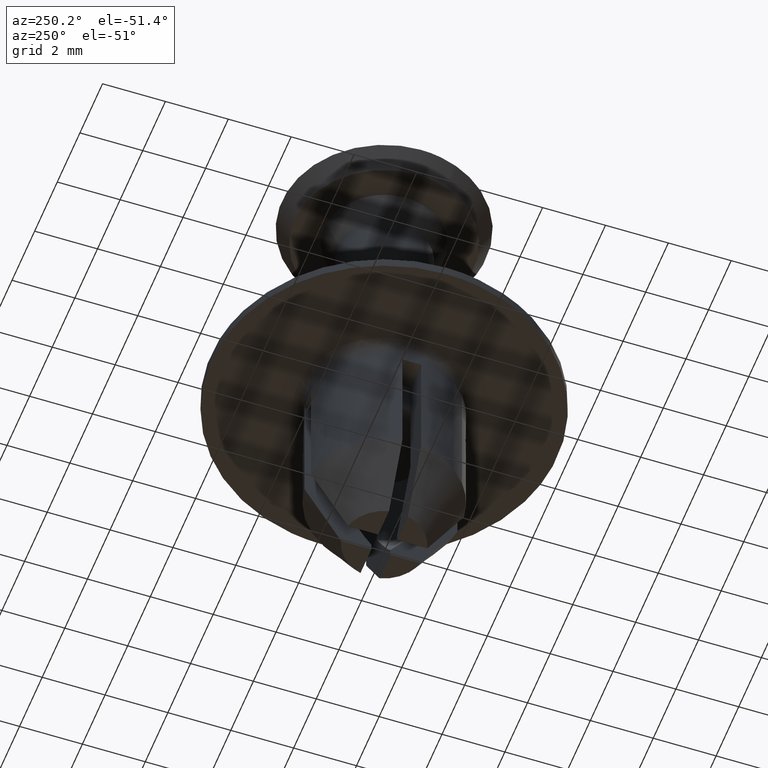
[diagram: clean part render]
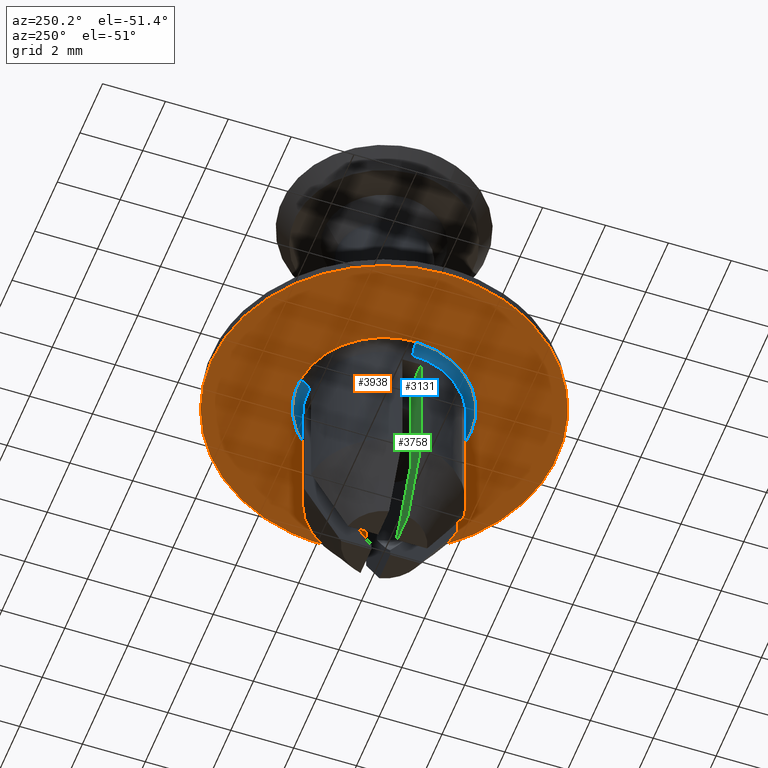
[diagram: same view with three faces highlighted in distinct colors, each labeled with its STEP entity id]
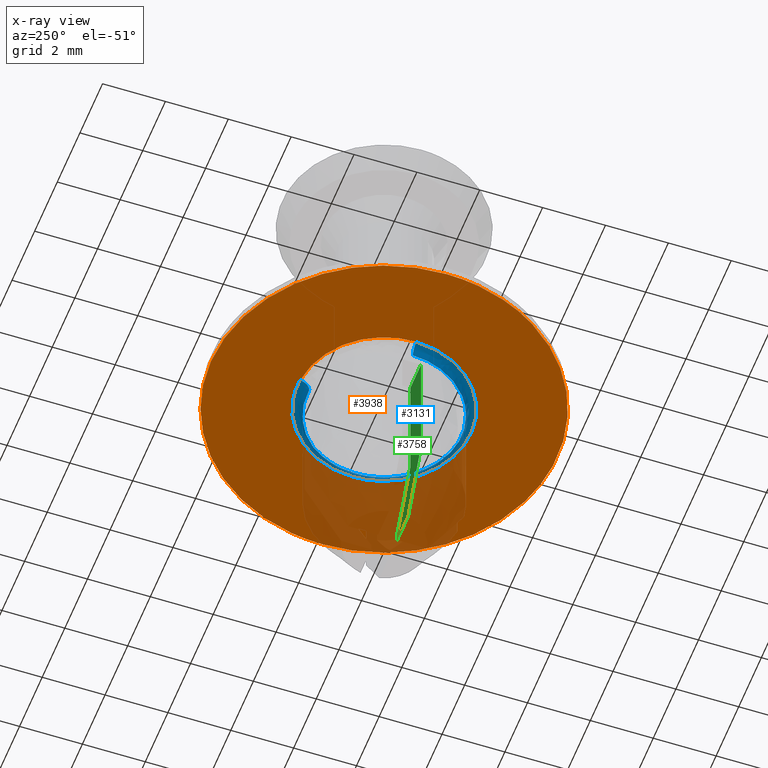
[diagram: x-ray of the same camera — body ghosted, the three highlighted faces saturated]
A machine part, auxiliary view with three faces highlighted in distinct colors.
The next image is the same camera in x-ray (body ghosted, the three faces saturated) — at least one of them is partly hidden behind the body in this view.
Their STEP definitions:

[orange] entity #3938 — the highlighted face is a freeform B-spline surface patch.
#2853=CARTESIAN_POINT('',(-5.148790866320307,-1.933895709412805,-8.913397459626493));
#2854=VERTEX_POINT('',#2853);
#2855=CARTESIAN_POINT('',(-5.500000000000000,0.0,-8.913397459621740));
#2856=VERTEX_POINT('',#2855);
#2857=CARTESIAN_POINT('',(-5.148790866320307,-1.933895709412805,-8.913397459626493));
#2858=CARTESIAN_POINT('',(-5.500000000000001,-0.998838885587663,-8.913397459621740));
#2859=CARTESIAN_POINT('',(-5.500000000000000,0.0,-8.913397459621740));
#2867=(BOUNDED_CURVE()B_SPLINE_CURVE(2,(#2857,#2858,#2859),.UNSPECIFIED.,.F.,.U.)B_SPLINE_CURVE_WITH_KNOTS((3,3),(0.940284267523785,1.0),.UNSPECIFIED.)CURVE()GEOMETRIC_REPRESENTATION_ITEM()RATIONAL_B_SPLINE_CURVE((0.893499672881765,0.930038667604954,1.0))REPRESENTATION_ITEM(''));
#2868=EDGE_CURVE('',#2854,#2856,#2867,.T.);
#2939=CARTESIAN_POINT('',(0.335765256333837,-5.489741495975574,-8.913397459621677));
#2940=VERTEX_POINT('',#2939);
#2946=CARTESIAN_POINT('',(5.500000000000000,0.0,-8.913397459621740));
#2947=VERTEX_POINT('',#2946);
#2948=CARTESIAN_POINT('',(5.500000000000000,0.0,-8.913397459621740));
#2949=CARTESIAN_POINT('',(5.500000000000001,-5.173884983652573,-8.913397459621740));
#2950=CARTESIAN_POINT('',(0.335765256333837,-5.489741495975575,-8.913397459621677));
#2958=(BOUNDED_CURVE()B_SPLINE_CURVE(2,(#2948,#2949,#2950),.UNSPECIFIED.,.F.,.U.)B_SPLINE_CURVE_WITH_KNOTS((3,3),(0.500000000000000,0.739333016023406),.UNSPECIFIED.)CURVE()GEOMETRIC_REPRESENTATION_ITEM()RATIONAL_B_SPLINE_CURVE((1.0,0.719603930274292,0.976072156937087))REPRESENTATION_ITEM(''));
#2959=EDGE_CURVE('',#2947,#2940,#2958,.T.);
#2961=CARTESIAN_POINT('',(-5.500000000000000,0.0,-8.913397459621740));
#2962=CARTESIAN_POINT('',(-5.500000000000001,5.500000000000001,-8.913397459621740));
#2963=CARTESIAN_POINT('',(0.0,5.500000000000000,-8.913397459621740));
#2964=CARTESIAN_POINT('',(5.500000000000001,5.500000000000001,-8.913397459621740));
#2965=CARTESIAN_POINT('',(5.500000000000000,0.0,-8.913397459621740));
#2973=(BOUNDED_CURVE()B_SPLINE_CURVE(2,(#2961,#2962,#2963,#2964,#2965),.UNSPECIFIED.,.F.,.U.)B_SPLINE_CURVE_WITH_KNOTS((3,2,3),(0.0,0.250000000000000,0.500000000000000),.UNSPECIFIED.)CURVE()GEOMETRIC_REPRESENTATION_ITEM()RATIONAL_B_SPLINE_CURVE((1.0,0.707106781186548,1.0,0.707106781186548,1.0))REPRESENTATION_ITEM(''));
#2974=EDGE_CURVE('',#2856,#2947,#2973,.T.);
#2993=CARTESIAN_POINT('',(0.335765256333837,-5.489741495975575,-8.913397459621677));
#2994=CARTESIAN_POINT('',(0.168039340189431,-5.500000000000000,-8.913397459621741));
#2995=CARTESIAN_POINT('',(0.0,-5.500000000000000,-8.913397459621740));
#2996=CARTESIAN_POINT('',(-3.809355265625922,-5.500000000000000,-8.913397459621740));
#2997=CARTESIAN_POINT('',(-5.148790866320307,-1.933895709412805,-8.913397459626493));
#3005=(BOUNDED_CURVE()B_SPLINE_CURVE(2,(#2993,#2994,#2995,#2996,#2997),.UNSPECIFIED.,.F.,.U.)B_SPLINE_CURVE_WITH_KNOTS((3,2,3),(0.739333016023406,0.750000000000000,0.940284267523785),.UNSPECIFIED.)CURVE()GEOMETRIC_REPRESENTATION_ITEM()RATIONAL_B_SPLINE_CURVE((0.976072156937087,0.987502850912255,1.0,0.777068113581594,0.893499672881765))REPRESENTATION_ITEM(''));
#3006=EDGE_CURVE('',#2940,#2854,#3005,.T.);
#3064=CARTESIAN_POINT('',(-0.191766441838224,2.743305602943734,-8.913397459621736));
#3065=VERTEX_POINT('',#3064);
#3079=CARTESIAN_POINT('',(2.750000000000000,0.0,-8.913397459621740));
#3080=VERTEX_POINT('',#3079);
#3081=CARTESIAN_POINT('',(2.750000000000000,0.0,-8.913397459621740));
#3082=CARTESIAN_POINT('',(2.750000000000000,2.750000000000000,-8.913397459621740));
#3083=CARTESIAN_POINT('',(0.0,2.750000000000000,-8.913397459621740));
#3084=CARTESIAN_POINT('',(-0.096000068669401,2.750000000000000,-8.913397459621741));
#3085=CARTESIAN_POINT('',(-0.191766441838224,2.743305602943734,-8.913397459621736));
#3093=(BOUNDED_CURVE()B_SPLINE_CURVE(2,(#3081,#3082,#3083,#3084,#3085),.UNSPECIFIED.,.F.,.U.)B_SPLINE_CURVE_WITH_KNOTS((3,2,3),(0.500000000000000,0.750000000000000,0.762166313466607),.UNSPECIFIED.)CURVE()GEOMETRIC_REPRESENTATION_ITEM()RATIONAL_B_SPLINE_CURVE((1.0,0.707106781186548,1.0,0.985746277150688,0.972879876383382))REPRESENTATION_ITEM(''));
#3094=EDGE_CURVE('',#3080,#3065,#3093,.T.);
#3096=CARTESIAN_POINT('',(-2.749782871016745,-0.034556609732422,-8.913397459621734));
#3097=VERTEX_POINT('',#3096);
#3098=CARTESIAN_POINT('',(-2.749782871016745,-0.034556609732422,-8.913397459621734));
#3099=CARTESIAN_POINT('',(-2.715657807126544,-2.749999999999999,-8.913397459621738));
#3100=CARTESIAN_POINT('',(0.0,-2.750000000000000,-8.913397459621740));
#3101=CARTESIAN_POINT('',(2.750000000000000,-2.750000000000000,-8.913397459621740));
#3102=CARTESIAN_POINT('',(2.750000000000000,0.0,-8.913397459621740));
#3110=(BOUNDED_CURVE()B_SPLINE_CURVE(2,(#3098,#3099,#3100,#3101,#3102),.UNSPECIFIED.,.F.,.U.)B_SPLINE_CURVE_WITH_KNOTS((3,2,3),(0.002215704085950,0.250000000000000,0.500000000000000),.UNSPECIFIED.)CURVE()GEOMETRIC_REPRESENTATION_ITEM()RATIONAL_B_SPLINE_CURVE((0.994854295626340,0.709702639993236,1.0,0.707106781186548,1.0))REPRESENTATION_ITEM(''));
#3111=EDGE_CURVE('',#3097,#3080,#3110,.T.);
#3152=CARTESIAN_POINT('',(-2.750000000000000,0.0,-8.913397459621740));
#3153=VERTEX_POINT('',#3152);
#3154=CARTESIAN_POINT('',(-2.750000000000000,0.0,-8.913397459621740));
#3155=CARTESIAN_POINT('',(-2.750000000000000,-0.017278987037730,-8.913397459621738));
#3156=CARTESIAN_POINT('',(-2.749782871016745,-0.034556609732422,-8.913397459621734));
#3164=(BOUNDED_CURVE()B_SPLINE_CURVE(2,(#3154,#3155,#3156),.UNSPECIFIED.,.F.,.U.)B_SPLINE_CURVE_WITH_KNOTS((3,3),(0.0,0.002215704085950),.UNSPECIFIED.)CURVE()GEOMETRIC_REPRESENTATION_ITEM()RATIONAL_B_SPLINE_CURVE((1.0,0.997404141193312,0.994854295626340))REPRESENTATION_ITEM(''));
#3165=EDGE_CURVE('',#3153,#3097,#3164,.T.);
#3167=CARTESIAN_POINT('',(-0.191766441838224,2.743305602943734,-8.913397459621736));
#3168=CARTESIAN_POINT('',(-2.750000000000000,2.564476329957151,-8.913397459621740));
#3169=CARTESIAN_POINT('',(-2.750000000000000,0.0,-8.913397459621740));
#3177=(BOUNDED_CURVE()B_SPLINE_CURVE(2,(#3167,#3168,#3169),.UNSPECIFIED.,.F.,.U.)B_SPLINE_CURVE_WITH_KNOTS((3,3),(0.762166313466608,1.0),.UNSPECIFIED.)CURVE()GEOMETRIC_REPRESENTATION_ITEM()RATIONAL_B_SPLINE_CURVE((0.972879876383380,0.721360504035861,1.0))REPRESENTATION_ITEM(''));
#3178=EDGE_CURVE('',#3065,#3153,#3177,.T.);
#3921=CARTESIAN_POINT('',(6.049449978679865,-6.048444225016681,-8.913397459621740));
#3922=CARTESIAN_POINT('',(-6.049450273722857,-6.048444225016681,-8.913397459621740));
#3923=CARTESIAN_POINT('',(6.049449978679865,6.049402426305858,-8.913397459621740));
#3924=CARTESIAN_POINT('',(-6.049450273722857,6.049402426305858,-8.913397459621740));
#3925=B_SPLINE_SURFACE_WITH_KNOTS('',1,1,((#3921,#3923),(#3922,#3924)),.UNSPECIFIED.,.F.,.F.,.U.,(2,2),(2,2),(0.0,12.098900252402720),(0.0,12.097846651322540),.UNSPECIFIED.);
#3926=ORIENTED_EDGE('',*,*,#2974,.T.);
#3927=ORIENTED_EDGE('',*,*,#2959,.T.);
#3928=ORIENTED_EDGE('',*,*,#3006,.T.);
#3929=ORIENTED_EDGE('',*,*,#2868,.T.);
#3930=EDGE_LOOP('',(#3926,#3927,#3928,#3929));
#3931=FACE_OUTER_BOUND('',#3930,.T.);
#3932=ORIENTED_EDGE('',*,*,#3165,.T.);
#3933=ORIENTED_EDGE('',*,*,#3111,.T.);
#3934=ORIENTED_EDGE('',*,*,#3094,.T.);
#3935=ORIENTED_EDGE('',*,*,#3178,.T.);
#3936=EDGE_LOOP('',(#3932,#3933,#3934,#3935));
#3937=FACE_BOUND('',#3936,.T.);
#3938=ADVANCED_FACE('',(#3931,#3937),#3925,.T.);

[blue] entity #3131 — the highlighted face is a freeform B-spline surface patch.
#2495=CARTESIAN_POINT('',(-1.502842864330901,-1.934932382571793,-9.213397459613795));
#2496=VERTEX_POINT('',#2495);
#2497=CARTESIAN_POINT('',(-2.449806558299195,-0.030786797725481,-9.213397459584456));
#2498=VERTEX_POINT('',#2497);
#2499=CARTESIAN_POINT('',(-1.502842864330901,-1.934932382571793,-9.213397459613795));
#2500=CARTESIAN_POINT('',(-2.434975354644088,-1.210954358262321,-9.213397459602641));
#2501=CARTESIAN_POINT('',(-2.449806558299195,-0.030786797725481,-9.213397459584456));
#2509=(BOUNDED_CURVE()B_SPLINE_CURVE(2,(#2499,#2500,#2501),.UNSPECIFIED.,.F.,.U.)B_SPLINE_CURVE_WITH_KNOTS((3,3),(0.856109346381657,0.997784295920110),.UNSPECIFIED.)CURVE()GEOMETRIC_REPRESENTATION_ITEM()RATIONAL_B_SPLINE_CURVE((0.856898060516079,0.831813912973609,0.994854295640287))REPRESENTATION_ITEM(''));
#2510=EDGE_CURVE('',#2496,#2498,#2509,.T.);
#2527=CARTESIAN_POINT('',(-0.170846466362908,2.444035900908832,-9.213397459585618));
#2528=VERTEX_POINT('',#2527);
#2542=CARTESIAN_POINT('',(2.449999999999975,0.0,-9.213397459621731));
#2543=VERTEX_POINT('',#2542);
#2544=CARTESIAN_POINT('',(-0.170846466362908,2.444035900908832,-9.213397459585618));
#2545=CARTESIAN_POINT('',(-0.085527333896129,2.449999999999975,-9.213397459621731));
#2546=CARTESIAN_POINT('',(0.0,2.449999999999975,-9.213397459621731));
#2547=CARTESIAN_POINT('',(2.449999999999976,2.449999999999976,-9.213397459621731));
#2548=CARTESIAN_POINT('',(2.449999999999975,0.0,-9.213397459621731));
#2556=(BOUNDED_CURVE()B_SPLINE_CURVE(2,(#2544,#2545,#2546,#2547,#2548),.UNSPECIFIED.,.F.,.U.)B_SPLINE_CURVE_WITH_KNOTS((3,2,3),(0.237833686534702,0.250000000000000,0.500000000000000),.UNSPECIFIED.)CURVE()GEOMETRIC_REPRESENTATION_ITEM()RATIONAL_B_SPLINE_CURVE((0.972879876386151,0.985746277152221,1.0,0.707106781186547,1.0))REPRESENTATION_ITEM(''));
#2557=EDGE_CURVE('',#2528,#2543,#2556,.T.);
#2559=CARTESIAN_POINT('',(1.748466203141140,-1.716206845480194,-9.213397459621731));
#2560=VERTEX_POINT('',#2559);
#2561=CARTESIAN_POINT('',(2.449999999999975,0.0,-9.213397459621731));
#2562=CARTESIAN_POINT('',(2.449999999999975,-1.001486373738948,-9.213397459621733));
#2563=CARTESIAN_POINT('',(1.748466203141140,-1.716206845480194,-9.213397459621731));
#2571=(BOUNDED_CURVE()B_SPLINE_CURVE(2,(#2561,#2562,#2563),.UNSPECIFIED.,.F.,.U.)B_SPLINE_CURVE_WITH_KNOTS((3,3),(0.500000000000000,0.623595116353077),.UNSPECIFIED.)CURVE()GEOMETRIC_REPRESENTATION_ITEM()RATIONAL_B_SPLINE_CURVE((1.0,0.855199314166897,0.853571889242175))REPRESENTATION_ITEM(''));
#2572=EDGE_CURVE('',#2543,#2560,#2571,.T.);
#2750=CARTESIAN_POINT('',(1.748466203141140,-1.716206845480194,-9.213397459621731));
#2751=CARTESIAN_POINT('',(1.028211616694022,-2.449999999999975,-9.213397459621731));
#2752=CARTESIAN_POINT('',(0.0,-2.449999999999975,-9.213397459621731));
#2753=CARTESIAN_POINT('',(-0.839685634699757,-2.449999999999975,-9.213397459621730));
#2754=CARTESIAN_POINT('',(-1.502842864330901,-1.934932382571793,-9.213397459613795));
#2762=(BOUNDED_CURVE()B_SPLINE_CURVE(2,(#2750,#2751,#2752,#2753,#2754),.UNSPECIFIED.,.F.,.U.)B_SPLINE_CURVE_WITH_KNOTS((3,2,3),(0.623595116353077,0.750000000000000,0.856109346381656),.UNSPECIFIED.)CURVE()GEOMETRIC_REPRESENTATION_ITEM()RATIONAL_B_SPLINE_CURVE((0.853571889242175,0.851907467019651,1.0,0.875685167968340,0.856898060516079))REPRESENTATION_ITEM(''));
#2763=EDGE_CURVE('',#2560,#2496,#2762,.T.);
#3028=CARTESIAN_POINT('',(-0.170896969009037,2.444760303719288,-9.234258172575672));
#3029=CARTESIAN_POINT('',(-0.100929046974350,2.449651296830308,-9.234258172575675));
#3030=CARTESIAN_POINT('',(-0.030795922683451,2.450532662056184,-9.234258172575673));
#3031=CARTESIAN_POINT('',(2.419736739372733,2.481328584739635,-9.234258172575672));
#3032=CARTESIAN_POINT('',(2.450532662056184,0.030795922683451,-9.234258172575673));
#3033=CARTESIAN_POINT('',(2.481328584739635,-2.419736739372733,-9.234258172575672));
#3034=CARTESIAN_POINT('',(0.030795922683452,-2.450532662056184,-9.234258172575673));
#3035=CARTESIAN_POINT('',(-2.419736739372733,-2.481328584739635,-9.234258172575672));
#3036=CARTESIAN_POINT('',(-2.450532662056184,-0.030795922683452,-9.234258172575673));
#3037=CARTESIAN_POINT('',(-0.169224291064653,2.420831870915303,-8.890136231153978));
#3038=CARTESIAN_POINT('',(-0.099941189835627,2.425674992748381,-8.890136231153978));
#3039=CARTESIAN_POINT('',(-0.030494503290537,2.426547731489056,-8.890136231153978));
#3040=CARTESIAN_POINT('',(2.396053228198519,2.457042234779594,-8.890136231153978));
#3041=CARTESIAN_POINT('',(2.426547731489056,0.030494503290537,-8.890136231153978));
#3042=CARTESIAN_POINT('',(2.457042234779594,-2.396053228198519,-8.890136231153978));
#3043=CARTESIAN_POINT('',(0.030494503290537,-2.426547731489056,-8.890136231153978));
#3044=CARTESIAN_POINT('',(-2.396053228198519,-2.457042234779594,-8.890136231153978));
#3045=CARTESIAN_POINT('',(-2.426547731489056,-0.030494503290538,-8.890136231153978));
#3046=CARTESIAN_POINT('',(-0.193221011108739,2.764116066787401,-8.914123657180316));
#3047=CARTESIAN_POINT('',(-0.114113273159304,2.769645963775728,-8.914123657180316));
#3048=CARTESIAN_POINT('',(-0.034818752804260,2.770642460560239,-8.914123657180316));
#3049=CARTESIAN_POINT('',(2.735823707755977,2.805461213364499,-8.914123657180316));
#3050=CARTESIAN_POINT('',(2.770642460560239,0.034818752804260,-8.914123657180316));
#3051=CARTESIAN_POINT('',(2.805461213364499,-2.735823707755977,-8.914123657180316));
#3052=CARTESIAN_POINT('',(0.034818752804261,-2.770642460560239,-8.914123657180316));
#3053=CARTESIAN_POINT('',(-2.735823707755977,-2.805461213364499,-8.914123657180316));
#3054=CARTESIAN_POINT('',(-2.770642460560239,-0.034818752804261,-8.914123657180316));
#3062=(BOUNDED_SURFACE()B_SPLINE_SURFACE(2,2,((#3028,#3037,#3046),(#3029,#3038,#3047),(#3030,#3039,#3048),(#3031,#3040,#3049),(#3032,#3041,#3050),(#3033,#3042,#3051),(#3034,#3043,#3052),(#3035,#3044,#3053),(#3036,#3045,#3054)),.UNSPECIFIED.,.F.,.F.,.U.)B_SPLINE_SURFACE_WITH_KNOTS((3,2,2,2,3),(3,3),(0.0,0.183636353423010,4.774549567234273,9.365462781045537,13.956375994856799),(0.0,0.546711790485251),.UNSPECIFIED.)GEOMETRIC_REPRESENTATION_ITEM()RATIONAL_B_SPLINE_SURFACE(((0.889998731178410,0.584039980648937,0.889999439994629),(0.899812295930817,0.590479893389603,0.899813012562793),(0.910479213255366,0.597479797962012,0.910479938382729),(0.643806025822262,0.422482016760907,0.643806538564738),(0.910479213255366,0.597479797962012,0.910479938382729),(0.643806025822262,0.422482016760907,0.643806538564738),(0.910479213255366,0.597479797962012,0.910479938382729),(0.643806025822262,0.422482016760907,0.643806538564738),(0.910479213255366,0.597479797962012,0.910479938382729)))REPRESENTATION_ITEM('')SURFACE());
#3063=ORIENTED_EDGE('',*,*,#2557,.F.);
#3064=CARTESIAN_POINT('',(-0.191766441838224,2.743305602943734,-8.913397459621736));
#3065=VERTEX_POINT('',#3064);
#3066=CARTESIAN_POINT('',(-0.170846466362908,2.444035900908831,-9.213397459585618));
#3067=CARTESIAN_POINT('',(-0.170846466364870,2.444035900981105,-8.913397459855267));
#3068=CARTESIAN_POINT('',(-0.191766441838224,2.743305602943733,-8.913397459621736));
#3076=(BOUNDED_CURVE()B_SPLINE_CURVE(2,(#3066,#3067,#3068),.UNSPECIFIED.,.F.,.U.)B_SPLINE_CURVE_WITH_KNOTS((3,3),(-1.725134643034936,-0.274865357516486),.UNSPECIFIED.)CURVE()GEOMETRIC_REPRESENTATION_ITEM()RATIONAL_B_SPLINE_CURVE((0.863472075286599,0.610566960043523,0.863472075094279))REPRESENTATION_ITEM(''));
#3077=EDGE_CURVE('',#2528,#3065,#3076,.T.);
#3078=ORIENTED_EDGE('',*,*,#3077,.T.);
#3079=CARTESIAN_POINT('',(2.750000000000000,0.0,-8.913397459621740));
#3080=VERTEX_POINT('',#3079);
#3081=CARTESIAN_POINT('',(2.750000000000000,0.0,-8.913397459621740));
#3082=CARTESIAN_POINT('',(2.750000000000000,2.750000000000000,-8.913397459621740));
#3083=CARTESIAN_POINT('',(0.0,2.750000000000000,-8.913397459621740));
#3084=CARTESIAN_POINT('',(-0.096000068669401,2.750000000000000,-8.913397459621741));
#3085=CARTESIAN_POINT('',(-0.191766441838224,2.743305602943734,-8.913397459621736));
#3093=(BOUNDED_CURVE()B_SPLINE_CURVE(2,(#3081,#3082,#3083,#3084,#3085),.UNSPECIFIED.,.F.,.U.)B_SPLINE_CURVE_WITH_KNOTS((3,2,3),(0.500000000000000,0.750000000000000,0.762166313466607),.UNSPECIFIED.)CURVE()GEOMETRIC_REPRESENTATION_ITEM()RATIONAL_B_SPLINE_CURVE((1.0,0.707106781186548,1.0,0.985746277150688,0.972879876383382))REPRESENTATION_ITEM(''));
#3094=EDGE_CURVE('',#3080,#3065,#3093,.T.);
#3095=ORIENTED_EDGE('',*,*,#3094,.F.);
#3096=CARTESIAN_POINT('',(-2.749782871016745,-0.034556609732422,-8.913397459621734));
#3097=VERTEX_POINT('',#3096);
#3098=CARTESIAN_POINT('',(-2.749782871016745,-0.034556609732422,-8.913397459621734));
#3099=CARTESIAN_POINT('',(-2.715657807126544,-2.749999999999999,-8.913397459621738));
#3100=CARTESIAN_POINT('',(0.0,-2.750000000000000,-8.913397459621740));
#3101=CARTESIAN_POINT('',(2.750000000000000,-2.750000000000000,-8.913397459621740));
#3102=CARTESIAN_POINT('',(2.750000000000000,0.0,-8.913397459621740));
#3110=(BOUNDED_CURVE()B_SPLINE_CURVE(2,(#3098,#3099,#3100,#3101,#3102),.UNSPECIFIED.,.F.,.U.)B_SPLINE_CURVE_WITH_KNOTS((3,2,3),(0.002215704085950,0.250000000000000,0.500000000000000),.UNSPECIFIED.)CURVE()GEOMETRIC_REPRESENTATION_ITEM()RATIONAL_B_SPLINE_CURVE((0.994854295626340,0.709702639993236,1.0,0.707106781186548,1.0))REPRESENTATION_ITEM(''));
#3111=EDGE_CURVE('',#3097,#3080,#3110,.T.);
#3112=ORIENTED_EDGE('',*,*,#3111,.F.);
#3113=CARTESIAN_POINT('',(-2.449806558299195,-0.030786797725481,-9.213397459584456));
#3114=CARTESIAN_POINT('',(-2.449806558373892,-0.030786797715151,-8.913397460707810));
#3115=CARTESIAN_POINT('',(-2.749782871016745,-0.034556609732422,-8.913397459621734));
#3123=(BOUNDED_CURVE()B_SPLINE_CURVE(2,(#3113,#3114,#3115),.UNSPECIFIED.,.F.,.U.)B_SPLINE_CURVE_WITH_KNOTS((3,3),(-1.725134643026984,-0.274865360430735),.UNSPECIFIED.)CURVE()GEOMETRIC_REPRESENTATION_ITEM()RATIONAL_B_SPLINE_CURVE((0.883342149562137,0.624617224835352,0.883342148328438))REPRESENTATION_ITEM(''));
#3124=EDGE_CURVE('',#2498,#3097,#3123,.T.);
#3125=ORIENTED_EDGE('',*,*,#3124,.F.);
#3126=ORIENTED_EDGE('',*,*,#2510,.F.);
#3127=ORIENTED_EDGE('',*,*,#2763,.F.);
#3128=ORIENTED_EDGE('',*,*,#2572,.F.);
#3129=EDGE_LOOP('',(#3063,#3078,#3095,#3112,#3125,#3126,#3127,#3128));
#3130=FACE_OUTER_BOUND('',#3129,.T.);
#3131=ADVANCED_FACE('',(#3130),#3062,.F.);

[green] entity #3758 — the highlighted face is a freeform B-spline surface patch.
#2233=CARTESIAN_POINT('',(-1.469693845669900,-0.300000000000027,-13.334936490539000));
#2234=VERTEX_POINT('',#2233);
#2248=CARTESIAN_POINT('',(-1.469693845669902,-0.300000000000027,-9.513397459621730));
#2249=VERTEX_POINT('',#2248);
#2250=CARTESIAN_POINT('',(-1.469693845669902,-0.300000000000027,-9.513397459621730));
#2251=CARTESIAN_POINT('',(-1.469693845669900,-0.300000000000027,-13.334936490539000));
#2252=QUASI_UNIFORM_CURVE('',1,(#2250,#2251),.UNSPECIFIED.,.F.,.U.);
#2253=EDGE_CURVE('',#2249,#2234,#2252,.T.);
#2691=CARTESIAN_POINT('',(-2.431563283157595,-0.300000000000040,-9.513397459621761));
#2692=VERTEX_POINT('',#2691);
#2706=CARTESIAN_POINT('',(-2.431563283157595,-0.300000000000040,-13.413397459621660));
#2707=VERTEX_POINT('',#2706);
#2708=CARTESIAN_POINT('',(-2.431563283157595,-0.300000000000040,-9.513397459621761));
#2709=CARTESIAN_POINT('',(-2.431563283157595,-0.300000000000040,-13.413397459621660));
#2710=QUASI_UNIFORM_CURVE('',1,(#2708,#2709),.UNSPECIFIED.,.F.,.U.);
#2711=EDGE_CURVE('',#2692,#2707,#2710,.T.);
#3464=CARTESIAN_POINT('',(-0.299999999999989,-0.300000000000011,-15.198165779057399));
#3465=VERTEX_POINT('',#3464);
#3466=CARTESIAN_POINT('',(-1.469693845669900,-0.300000000000027,-13.334936490539000));
#3467=CARTESIAN_POINT('',(-1.376572089604576,-0.300000000000026,-13.492969350994940));
#3468=CARTESIAN_POINT('',(-1.283202142209977,-0.300000000000025,-13.650855204410989));
#3469=CARTESIAN_POINT('',(-1.095515108537946,-0.300000000000022,-13.966065908230069));
#3470=CARTESIAN_POINT('',(-1.001226612931395,-0.300000000000021,-14.123407693269399));
#3471=CARTESIAN_POINT('',(-0.810584648611443,-0.300000000000018,-14.436868152191140));
#3472=CARTESIAN_POINT('',(-0.714355838836645,-0.300000000000017,-14.593142817140411));
#3473=CARTESIAN_POINT('',(-0.565680736067957,-0.300000000000015,-14.824604512581470));
#3474=CARTESIAN_POINT('',(-0.515395802936046,-0.300000000000014,-14.901262568543670));
#3475=CARTESIAN_POINT('',(-0.437480609177939,-0.300000000000013,-15.014551864745060));
#3476=CARTESIAN_POINT('',(-0.411085203019129,-0.300000000000013,-15.052025827784870));
#3477=CARTESIAN_POINT('',(-0.356880316799537,-0.300000000000012,-15.126008723287679));
#3478=CARTESIAN_POINT('',(-0.329093784142813,-0.300000000000012,-15.162533316139120));
#3479=CARTESIAN_POINT('',(-0.299999999999998,-0.300000000000011,-15.198165779057410));
#3480=B_SPLINE_CURVE_WITH_KNOTS('',3,(#3466,#3467,#3468,#3469,#3470,#3471,#3472,#3473,#3474,#3475,#3476,#3477,#3478,#3479),.UNSPECIFIED.,.F.,.U.,(4,2,2,2,2,2,4),(0.0,0.250000000000000,0.500000000000000,0.750000000000000,0.875000000000001,0.937500000000000,1.0),.UNSPECIFIED.);
#3481=EDGE_CURVE('',#2234,#3465,#3480,.T.);
#3720=CARTESIAN_POINT('',(-2.538034965067890,-0.300000000000011,-15.708102835881309));
#3721=CARTESIAN_POINT('',(-0.193528356204995,-0.300000000000011,-15.708102835881309));
#3722=CARTESIAN_POINT('',(-2.538034965067890,-0.300000000000011,-9.218692294362663));
#3723=CARTESIAN_POINT('',(-0.193528356204995,-0.300000000000011,-9.218692294362663));
#3724=B_SPLINE_SURFACE_WITH_KNOTS('',1,1,((#3720,#3722),(#3721,#3723)),.UNSPECIFIED.,.F.,.F.,.U.,(2,2),(2,2),(0.0,2.344506608862895),(0.0,6.489410541518645),.UNSPECIFIED.);
#3725=ORIENTED_EDGE('',*,*,#2253,.T.);
#3726=ORIENTED_EDGE('',*,*,#3481,.T.);
#3727=CARTESIAN_POINT('',(-0.299999999999969,-0.300000000000011,-15.413397459621800));
#3728=VERTEX_POINT('',#3727);
#3729=CARTESIAN_POINT('',(-0.299999999999989,-0.300000000000011,-15.198165779057399));
#3730=CARTESIAN_POINT('',(-0.299999999999969,-0.300000000000011,-15.413397459621800));
#3731=QUASI_UNIFORM_CURVE('',1,(#3729,#3730),.UNSPECIFIED.,.F.,.U.);
#3732=EDGE_CURVE('',#3465,#3728,#3731,.T.);
#3733=ORIENTED_EDGE('',*,*,#3732,.T.);
#3734=CARTESIAN_POINT('',(-1.260079638465360,-0.300000000000024,-15.413397459621750));
#3735=VERTEX_POINT('',#3734);
#3736=CARTESIAN_POINT('',(-0.299999999999969,-0.300000000000011,-15.413397459621800));
#3737=CARTESIAN_POINT('',(-1.260079638465360,-0.300000000000024,-15.413397459621750));
#3738=QUASI_UNIFORM_CURVE('',1,(#3736,#3737),.UNSPECIFIED.,.F.,.U.);
#3739=EDGE_CURVE('',#3728,#3735,#3738,.T.);
#3740=ORIENTED_EDGE('',*,*,#3739,.T.);
#3741=CARTESIAN_POINT('',(-1.260079638465360,-0.300000000000024,-15.413397459621750));
#3742=CARTESIAN_POINT('',(-1.457244644261675,-0.300000000000027,-15.081183198180160));
#3743=CARTESIAN_POINT('',(-1.652750555636497,-0.300000000000030,-14.748000789864159));
#3744=CARTESIAN_POINT('',(-2.042831718184793,-0.300000000000035,-14.081092896386490));
#3745=CARTESIAN_POINT('',(-2.237314903291539,-0.300000000000037,-13.747313687052420));
#3746=CARTESIAN_POINT('',(-2.431563283157591,-0.300000000000040,-13.413397459621660));
#3747=B_SPLINE_CURVE_WITH_KNOTS('',3,(#3741,#3742,#3743,#3744,#3745,#3746),.UNSPECIFIED.,.F.,.U.,(4,2,4),(0.0,0.500000000000000,1.0),.UNSPECIFIED.);
#3748=EDGE_CURVE('',#3735,#2707,#3747,.T.);
#3749=ORIENTED_EDGE('',*,*,#3748,.T.);
#3750=ORIENTED_EDGE('',*,*,#2711,.F.);
#3751=CARTESIAN_POINT('',(-1.469693845669902,-0.300000000000027,-9.513397459621730));
#3752=CARTESIAN_POINT('',(-2.431563283157595,-0.300000000000040,-9.513397459621761));
#3753=QUASI_UNIFORM_CURVE('',1,(#3751,#3752),.UNSPECIFIED.,.F.,.U.);
#3754=EDGE_CURVE('',#2249,#2692,#3753,.T.);
#3755=ORIENTED_EDGE('',*,*,#3754,.F.);
#3756=EDGE_LOOP('',(#3725,#3726,#3733,#3740,#3749,#3750,#3755));
#3757=FACE_OUTER_BOUND('',#3756,.T.);
#3758=ADVANCED_FACE('',(#3757),#3724,.F.);